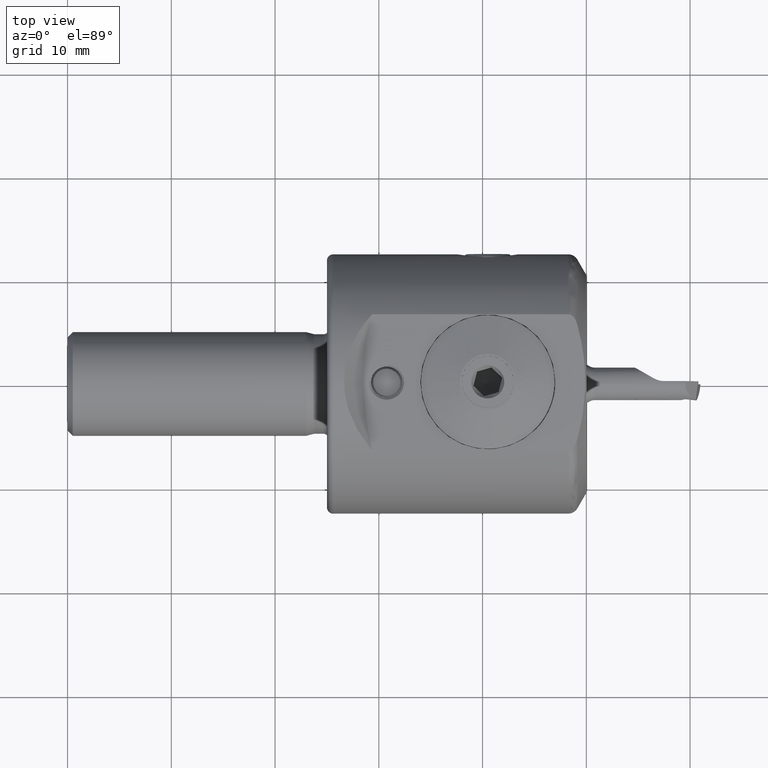
[diagram: clean part render]
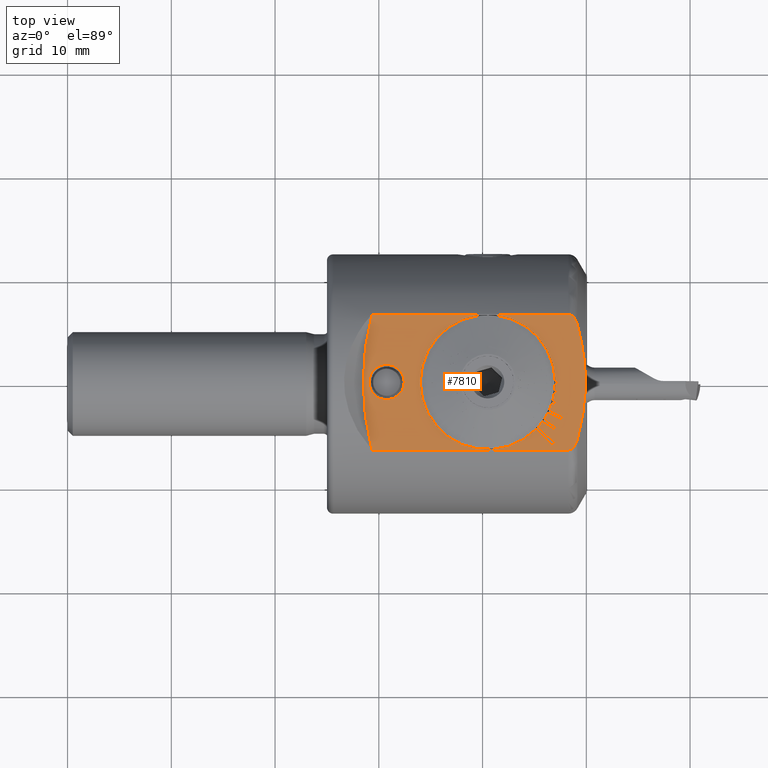
[diagram: same view with one face highlighted and labeled with its STEP entity id]
A machine part, top view. The second image highlights one B-rep face of the part: STEP entity #7810.
In plain terms, the highlighted planar face has unit normal (0, 0, 1).
Its self-contained STEP definition (entity closure, byte-faithful):
#161 = CIRCLE ( 'NONE', #25487, 26.00000000000000000 ) ;
#274 = CARTESIAN_POINT ( 'NONE',  ( -4.063373307742120100, -3.562736337287559300, 10.65000000000000000 ) ) ;
#407 = CARTESIAN_POINT ( 'NONE',  ( -0.4273664127864775200, -3.703570916399436400, 10.64999999999999900 ) ) ;
#452 = ORIENTED_EDGE ( 'NONE', *, *, #12678, .F. ) ;
#493 = EDGE_CURVE ( 'NONE', #11500, #12852, #5514, .T. ) ;
#1040 = CARTESIAN_POINT ( 'NONE',  ( -1.732050807571700000, -6.544272304852478700, 10.65000000000000000 ) ) ;
#1185 = DIRECTION ( 'NONE',  ( 1.000000000000000000, 0.0000000000000000000, 0.0000000000000000000 ) ) ;
#1258 = VERTEX_POINT ( 'NONE', #4352 ) ;
#1370 = AXIS2_PLACEMENT_3D ( 'NONE', #5457, #22937, #7993 ) ;
#1416 = CARTESIAN_POINT ( 'NONE',  ( -1.905639879263398600, -2.519562334328281100, 10.65000000000000000 ) ) ;
#1555 = EDGE_CURVE ( 'NONE', #31138, #13710, #3898, .T. ) ;
#1772 = DIRECTION ( 'NONE',  ( 0.8994052515663707400, -0.4371157666509335500, -1.155149275269835000E-015 ) ) ;
#1791 = VECTOR ( 'NONE', #8668, 1000.000000000000000 ) ;
#1798 = VERTEX_POINT ( 'NONE', #3910 ) ;
#1800 = VERTEX_POINT ( 'NONE', #3254 ) ;
#1807 = VERTEX_POINT ( 'NONE', #2376 ) ;
#1916 = DIRECTION ( 'NONE',  ( 1.000000000000000000, 0.0000000000000000000, 0.0000000000000000000 ) ) ;
#1922 = DIRECTION ( 'NONE',  ( -0.0000000000000000000, -0.0000000000000000000, 1.000000000000000000 ) ) ;
#1957 = EDGE_CURVE ( 'NONE', #31138, #16425, #21854, .T. ) ;
#1966 = EDGE_CURVE ( 'NONE', #1258, #23478, #28532, .T. ) ;
#2092 = VECTOR ( 'NONE', #26825, 1000.000000000000200 ) ;
#2209 = CARTESIAN_POINT ( 'NONE',  ( -1.494976211891614800, 6.500633488989178600, 10.65000000000000000 ) ) ;
#2241 = ORIENTED_EDGE ( 'NONE', *, *, #25653, .F. ) ;
#2343 = CARTESIAN_POINT ( 'NONE',  ( -2.996829561341576700, -4.661681482658340600, 10.64999999998299500 ) ) ;
#2367 = LINE ( 'NONE', #13062, #9082 ) ;
#2376 = CARTESIAN_POINT ( 'NONE',  ( -20.66291914703061400, -6.544272304847956100, 10.65000000000000200 ) ) ;
#2489 = EDGE_CURVE ( 'NONE', #23478, #1258, #28128, .T. ) ;
#2599 = EDGE_LOOP ( 'NONE', ( #11878, #11426, #31068, #16660, #27181, #29207 ) ) ;
#2607 = CARTESIAN_POINT ( 'NONE',  ( -20.66291914703061400, 6.544272304847956100, 10.65000000000000200 ) ) ;
#2653 = CARTESIAN_POINT ( 'NONE',  ( -9.500000000000000000, 0.0000000000000000000, 10.65000000000000000 ) ) ;
#2673 = EDGE_CURVE ( 'NONE', #12225, #28989, #11708, .T. ) ;
#2721 = VECTOR ( 'NONE', #7045, 1000.000000000000100 ) ;
#2819 = CARTESIAN_POINT ( 'NONE',  ( -0.8660254037844437000, 5.529692577350034300, 10.65000000000000000 ) ) ;
#2926 = CARTESIAN_POINT ( 'NONE',  ( -0.8660254037842404200, -5.529692577350301600, 10.65000000000000000 ) ) ;
#3001 = EDGE_CURVE ( 'NONE', #1798, #1807, #12870, .T. ) ;
#3028 = DIRECTION ( 'NONE',  ( 0.9886517447379135100, -0.1502255891207596700, -1.155149275269835400E-015 ) ) ;
#3254 = CARTESIAN_POINT ( 'NONE',  ( -3.098008853464976100, -1.124504050542915400, 10.64999999998299400 ) ) ;
#3359 = VERTEX_POINT ( 'NONE', #8485 ) ;
#3367 = DIRECTION ( 'NONE',  ( 0.7289686274214090000, -0.6845471059286913900, -7.878907442359713800E-016 ) ) ;
#3389 = LINE ( 'NONE', #18387, #4180 ) ;
#3513 = LINE ( 'NONE', #17002, #2721 ) ;
#3626 = VECTOR ( 'NONE', #9592, 1000.000000000000200 ) ;
#3660 = VECTOR ( 'NONE', #22368, 1000.000000000000000 ) ;
#3898 = LINE ( 'NONE', #19598, #10587 ) ;
#3910 = CARTESIAN_POINT ( 'NONE',  ( -1.732050807571700000, -6.544272304852478700, 10.65000000000000000 ) ) ;
#4090 = DIRECTION ( 'NONE',  ( 0.2970415815770525700, 0.9548645447466375100, 0.0000000000000000000 ) ) ;
#4131 = VERTEX_POINT ( 'NONE', #28939 ) ;
#4135 = AXIS2_PLACEMENT_3D ( 'NONE', #19632, #4662, #22130 ) ;
#4180 = VECTOR ( 'NONE', #3367, 1000.000000000000000 ) ;
#4347 = CIRCLE ( 'NONE', #28682, 6.500000000000001800 ) ;
#4352 = CARTESIAN_POINT ( 'NONE',  ( -20.94999999999999900, 2.081899558550505000E-016, 10.64999999999999300 ) ) ;
#4452 = EDGE_CURVE ( 'NONE', #11500, #26470, #3389, .T. ) ;
#4545 = CARTESIAN_POINT ( 'NONE',  ( -4.865647832140092000, -4.557716531801025500, 10.64999999998299700 ) ) ;
#4564 = EDGE_CURVE ( 'NONE', #10354, #13985, #8522, .T. ) ;
#4662 = DIRECTION ( 'NONE',  ( 0.0000000000000000000, 0.0000000000000000000, -1.000000000000000000 ) ) ;
#4775 = CARTESIAN_POINT ( 'NONE',  ( -1.216727424223813500, 6.275384479225790500, 10.65000000000000000 ) ) ;
#5006 = ORIENTED_EDGE ( 'NONE', *, *, #22081, .F. ) ;
#5037 = VECTOR ( 'NONE', #23191, 1000.000000000000100 ) ;
#5114 = ORIENTED_EDGE ( 'NONE', *, *, #2489, .T. ) ;
#5187 = DIRECTION ( 'NONE',  ( 1.000000000000000000, 0.0000000000000000000, 0.0000000000000000000 ) ) ;
#5249 = EDGE_CURVE ( 'NONE', #8414, #28441, #17477, .T. ) ;
#5365 = LINE ( 'NONE', #18390, #31157 ) ;
#5401 = LINE ( 'NONE', #19067, #12858 ) ;
#5415 = VECTOR ( 'NONE', #17884, 1000.000000000000000 ) ;
#5457 = CARTESIAN_POINT ( 'NONE',  ( -9.500000000000000000, 0.0000000000000000000, 10.65000000000000000 ) ) ;
#5514 = CIRCLE ( 'NONE', #14099, 6.500000000000001800 ) ;
#5597 = FACE_BOUND ( 'NONE', #29061, .T. ) ;
#5833 = DIRECTION ( 'NONE',  ( -0.8235325976284257900, 0.5672689491267588500, 0.0000000000000000000 ) ) ;
#5918 = DIRECTION ( 'NONE',  ( -1.000000000000000000, 1.772754174530942800E-015, 1.575781488471949100E-015 ) ) ;
#6005 = CARTESIAN_POINT ( 'NONE',  ( -9.500000000000000000, 0.0000000000000000000, 10.65000000000000000 ) ) ;
#6161 = VERTEX_POINT ( 'NONE', #7443 ) ;
#6242 = ORIENTED_EDGE ( 'NONE', *, *, #7495, .F. ) ;
#6352 = ORIENTED_EDGE ( 'NONE', *, *, #1555, .F. ) ;
#6412 = CARTESIAN_POINT ( 'NONE',  ( -3.260655007323032300, -6.064905115692841500, 10.65000000000000000 ) ) ;
#6617 = EDGE_CURVE ( 'NONE', #6161, #19150, #24396, .T. ) ;
#6729 = CARTESIAN_POINT ( 'NONE',  ( -2.239190622471396000, -3.362015345472549200, 10.64999999998299400 ) ) ;
#7045 = DIRECTION ( 'NONE',  ( 0.6845471059286947200, 0.7289686274214057800, 0.0000000000000000000 ) ) ;
#7289 = CARTESIAN_POINT ( 'NONE',  ( -0.9266429168603677000, 5.757537314121174500, 10.64999999999999900 ) ) ;
#7443 = CARTESIAN_POINT ( 'NONE',  ( -2.996829561341576300, -4.661681482658339700, 10.65000000000000000 ) ) ;
#7495 = EDGE_CURVE ( 'NONE', #28989, #16425, #16965, .T. ) ;
#7497 = DIRECTION ( 'NONE',  ( -1.000000000000000000, 0.0000000000000000000, 0.0000000000000000000 ) ) ;
#7602 = AXIS2_PLACEMENT_3D ( 'NONE', #26690, #26591, #26476 ) ;
#7775 = ORIENTED_EDGE ( 'NONE', *, *, #4452, .F. ) ;
#7791 = LINE ( 'NONE', #14978, #20301 ) ;
#7810 = ADVANCED_FACE ( 'NONE', ( #5597, #13052, #31385 ), #8695, .T. ) ;
#7876 = CARTESIAN_POINT ( 'NONE',  ( -0.4313324834103293100, 3.724889982567108700, 10.65000000000000000 ) ) ;
#7963 = EDGE_CURVE ( 'NONE', #11821, #28441, #29048, .T. ) ;
#7987 = EDGE_CURVE ( 'NONE', #1800, #12225, #28274, .T. ) ;
#7993 = DIRECTION ( 'NONE',  ( 1.000000000000000000, 0.0000000000000000000, 0.0000000000000000000 ) ) ;
#8041 = ORIENTED_EDGE ( 'NONE', *, *, #8382, .T. ) ;
#8168 = DIRECTION ( 'NONE',  ( -1.459718204505441300E-016, -0.0000000000000000000, -1.000000000000000000 ) ) ;
#8306 = CIRCLE ( 'NONE', #28889, 6.500000000000001800 ) ;
#8382 = EDGE_CURVE ( 'NONE', #9609, #14868, #8737, .T. ) ;
#8385 = VERTEX_POINT ( 'NONE', #22025 ) ;
#8387 = CARTESIAN_POINT ( 'NONE',  ( -19.24999999999999600, 0.0000000000000000000, 10.64999999999999300 ) ) ;
#8414 = VERTEX_POINT ( 'NONE', #25317 ) ;
#8485 = CARTESIAN_POINT ( 'NONE',  ( -3.055290875544431000, -5.846214527466427700, 10.65000000000000000 ) ) ;
#8522 = LINE ( 'NONE', #13700, #1791 ) ;
#8538 = DIRECTION ( 'NONE',  ( 1.000000000000000000, 0.0000000000000000000, 0.0000000000000000000 ) ) ;
#8668 = DIRECTION ( 'NONE',  ( 1.000000000000000000, -1.186607980821748300E-032, -0.0000000000000000000 ) ) ;
#8695 = PLANE ( 'NONE',  #27160 ) ;
#8737 = CIRCLE ( 'NONE', #4135, 6.500000000000001800 ) ;
#8820 = LINE ( 'NONE', #19295, #2092 ) ;
#9068 = CARTESIAN_POINT ( 'NONE',  ( -0.8660254037842404200, -5.529692577350301600, 10.65000000000000000 ) ) ;
#9082 = VECTOR ( 'NONE', #30498, 1000.000000000000000 ) ;
#9332 = DIRECTION ( 'NONE',  ( 1.000000000000000000, 0.0000000000000000000, 0.0000000000000000000 ) ) ;
#9552 = DIRECTION ( 'NONE',  ( 0.0000000000000000000, 0.0000000000000000000, -1.000000000000000000 ) ) ;
#9584 = CARTESIAN_POINT ( 'NONE',  ( -9.500000000000000000, 0.0000000000000000000, 10.65000000000000000 ) ) ;
#9592 = DIRECTION ( 'NONE',  ( -0.9886517447379137300, 0.1502255891207582800, 1.155149275269824700E-015 ) ) ;
#9609 = VERTEX_POINT ( 'NONE', #17237 ) ;
#9705 = CARTESIAN_POINT ( 'NONE',  ( -1.613081139254036700, 6.544272304849053900, 10.65000000000000000 ) ) ;
#9726 = EDGE_CURVE ( 'NONE', #12852, #8385, #27409, .T. ) ;
#9824 = DIRECTION ( 'NONE',  ( -0.7289686274214097800, 0.6845471059286905000, 7.878907442359722700E-016 ) ) ;
#10090 = VERTEX_POINT ( 'NONE', #1416 ) ;
#10138 = CARTESIAN_POINT ( 'NONE',  ( -3.720990100054861300, -2.975406623696370500, 10.64999999998299500 ) ) ;
#10354 = VERTEX_POINT ( 'NONE', #2607 ) ;
#10417 = CARTESIAN_POINT ( 'NONE',  ( -0.1747945969716532000, 1.868828157054754000, 10.65000000000000000 ) ) ;
#10587 = VECTOR ( 'NONE', #21487, 1000.000000000000000 ) ;
#10779 = ORIENTED_EDGE ( 'NONE', *, *, #11132, .T. ) ;
#10934 = CARTESIAN_POINT ( 'NONE',  ( -0.9268816546892323400, -5.758434664655880800, 10.64999999999999700 ) ) ;
#11045 = CARTESIAN_POINT ( 'NONE',  ( -1.013037529046951100, -5.984356402960452600, 10.64999999999999900 ) ) ;
#11132 = EDGE_CURVE ( 'NONE', #1800, #4131, #8306, .T. ) ;
#11147 = EDGE_CURVE ( 'NONE', #28377, #1798, #11350, .T. ) ;
#11329 = CARTESIAN_POINT ( 'NONE',  ( -3.001730999719981700, -0.1499999999999830400, 10.64999999998299500 ) ) ;
#11350 = B_SPLINE_CURVE_WITH_KNOTS ( 'NONE', 3,
 ( #28397, #10934, #11045, #28503, #13567, #31002, #16075, #1040 ),
 .UNSPECIFIED., .F., .F.,
 ( 4, 2, 2, 4 ),
 ( 0.005563745697690235600, 0.006273445233158292000, 0.006628295000892319400, 0.006983144768626347600 ),
 .UNSPECIFIED. ) ;
#11426 = ORIENTED_EDGE ( 'NONE', *, *, #21233, .F. ) ;
#11500 = VERTEX_POINT ( 'NONE', #4545 ) ;
#11515 = CARTESIAN_POINT ( 'NONE',  ( -0.7999999999999951600, -0.1499999999999869500, 10.64999999998299200 ) ) ;
#11708 = LINE ( 'NONE', #23525, #5037 ) ;
#11739 = EDGE_CURVE ( 'NONE', #11821, #10090, #27018, .T. ) ;
#11821 = VERTEX_POINT ( 'NONE', #13525 ) ;
#11878 = ORIENTED_EDGE ( 'NONE', *, *, #11147, .F. ) ;
#12102 = VECTOR ( 'NONE', #28979, 1000.000000000000000 ) ;
#12161 = CARTESIAN_POINT ( 'NONE',  ( -16.00000000000000000, 7.960204194457799400E-016, 10.65000000000000000 ) ) ;
#12177 = VECTOR ( 'NONE', #28263, 1000.000000000000100 ) ;
#12225 = VERTEX_POINT ( 'NONE', #14609 ) ;
#12678 = EDGE_CURVE ( 'NONE', #13710, #29473, #32010, .T. ) ;
#12852 = VERTEX_POINT ( 'NONE', #12161 ) ;
#12858 = VECTOR ( 'NONE', #4090, 999.9999999999998900 ) ;
#12870 = LINE ( 'NONE', #17999, #5415 ) ;
#12916 = CARTESIAN_POINT ( 'NONE',  ( -0.08658808963688283100, 0.4652501652095394900, 10.65000000000000200 ) ) ;
#13052 = FACE_OUTER_BOUND ( 'NONE', #2599, .T. ) ;
#13062 = CARTESIAN_POINT ( 'NONE',  ( -2.370325352466673400, -3.631836920942453700, 10.64999999998299400 ) ) ;
#13196 = CARTESIAN_POINT ( 'NONE',  ( -1.732050807568880500, 6.544272304847957900, 10.65000000000000200 ) ) ;
#13525 = CARTESIAN_POINT ( 'NONE',  ( -3.339589566642954500, -2.073485783068183900, 10.64999999998299500 ) ) ;
#13567 = CARTESIAN_POINT ( 'NONE',  ( -1.298760411601244100, -6.365820453527287100, 10.65000000000000000 ) ) ;
#13700 = CARTESIAN_POINT ( 'NONE',  ( 13.00000000000000200, 6.544272304847956100, 10.65000000000000000 ) ) ;
#13707 = CARTESIAN_POINT ( 'NONE',  ( -9.500000000000000000, 0.0000000000000000000, 10.65000000000000000 ) ) ;
#13710 = VERTEX_POINT ( 'NONE', #14727 ) ;
#13985 = VERTEX_POINT ( 'NONE', #13196 ) ;
#14044 = AXIS2_PLACEMENT_3D ( 'NONE', #2653, #20157, #5187 ) ;
#14099 = AXIS2_PLACEMENT_3D ( 'NONE', #13707, #18711, #18911 ) ;
#14385 = VERTEX_POINT ( 'NONE', #15127 ) ;
#14570 = CARTESIAN_POINT ( 'NONE',  ( -4.660283700361503600, -4.339025943574604600, 10.65000000000000000 ) ) ;
#14609 = CARTESIAN_POINT ( 'NONE',  ( -1.613319880464787200, -1.350102474676761600, 10.65000000000000000 ) ) ;
#14727 = CARTESIAN_POINT ( 'NONE',  ( -0.7999999999999951600, -0.1499999999999869500, 10.65000000000000000 ) ) ;
#14868 = VERTEX_POINT ( 'NONE', #14570 ) ;
#14978 = CARTESIAN_POINT ( 'NONE',  ( -1.816527404790282900, -2.233102970904290000, 10.64999999998299400 ) ) ;
#14979 = VECTOR ( 'NONE', #3028, 1000.000000000000100 ) ;
#15127 = CARTESIAN_POINT ( 'NONE',  ( -2.370325352466673000, -3.631836920942453700, 10.65000000000000000 ) ) ;
#15243 = CARTESIAN_POINT ( 'NONE',  ( -17.54999999999999400, 0.0000000000000000000, 10.64999999999999300 ) ) ;
#15435 = CARTESIAN_POINT ( 'NONE',  ( -0.1582629119096671500, -1.858906445210494900, 10.65000000000000000 ) ) ;
#15747 = ORIENTED_EDGE ( 'NONE', *, *, #29696, .F. ) ;
#15902 = CARTESIAN_POINT ( 'NONE',  ( -2.826648876603554700, -4.414621703369815200, 10.64999999998299500 ) ) ;
#16075 = CARTESIAN_POINT ( 'NONE',  ( -1.613332166985270900, -6.544272304849791100, 10.65000000000000000 ) ) ;
#16225 = DIRECTION ( 'NONE',  ( 0.0000000000000000000, -0.0000000000000000000, 1.000000000000000000 ) ) ;
#16425 = VERTEX_POINT ( 'NONE', #25162 ) ;
#16660 = ORIENTED_EDGE ( 'NONE', *, *, #4564, .F. ) ;
#16769 = ORIENTED_EDGE ( 'NONE', *, *, #7963, .T. ) ;
#16923 = ORIENTED_EDGE ( 'NONE', *, *, #1966, .T. ) ;
#16962 = DIRECTION ( 'NONE',  ( 0.0000000000000000000, 0.0000000000000000000, -1.000000000000000000 ) ) ;
#16965 = LINE ( 'NONE', #27065, #3626 ) ;
#16968 = CARTESIAN_POINT ( 'NONE',  ( 4.500000000000000900, 0.0000000000000000000, 10.65000000000000200 ) ) ;
#17002 = CARTESIAN_POINT ( 'NONE',  ( -3.260655007323032300, -6.064905115692842400, 10.64999999998299500 ) ) ;
#17237 = CARTESIAN_POINT ( 'NONE',  ( -4.233553992480136900, -3.809796116576102100, 10.64999999998299500 ) ) ;
#17253 = CARTESIAN_POINT ( 'NONE',  ( -3.055290875544431000, -5.846214527466427700, 10.64999999998299500 ) ) ;
#17375 = LINE ( 'NONE', #15902, #23226 ) ;
#17477 = LINE ( 'NONE', #6729, #24890 ) ;
#17841 = CARTESIAN_POINT ( 'NONE',  ( -0.6275034978080783500, 4.633153637963544300, 10.65000000000000000 ) ) ;
#17884 = DIRECTION ( 'NONE',  ( -1.000000000000000000, 1.186607980821748300E-032, 0.0000000000000000000 ) ) ;
#17949 = CARTESIAN_POINT ( 'NONE',  ( -0.6255965174775632900, -4.625985817817602100, 10.65000000000000200 ) ) ;
#17999 = CARTESIAN_POINT ( 'NONE',  ( 13.00000000000000200, -6.544272304847956100, 10.65000000000000000 ) ) ;
#18037 = EDGE_CURVE ( 'NONE', #10354, #1807, #161, .T. ) ;
#18355 = LINE ( 'NONE', #24332, #24969 ) ;
#18387 = CARTESIAN_POINT ( 'NONE',  ( -4.865647832140093800, -4.557716531801025500, 10.64999999998299700 ) ) ;
#18390 = CARTESIAN_POINT ( 'NONE',  ( -0.7999999999999951600, 0.1500000000000129600, 10.64999999998299200 ) ) ;
#18711 = DIRECTION ( 'NONE',  ( 0.0000000000000000000, 0.0000000000000000000, -1.000000000000000000 ) ) ;
#18720 = VERTEX_POINT ( 'NONE', #28146 ) ;
#18911 = DIRECTION ( 'NONE',  ( 1.000000000000000000, 0.0000000000000000000, 0.0000000000000000000 ) ) ;
#19067 = CARTESIAN_POINT ( 'NONE',  ( -1.905639879263398800, -2.519562334328281600, 10.64999999998299400 ) ) ;
#19150 = VERTEX_POINT ( 'NONE', #26916 ) ;
#19295 = CARTESIAN_POINT ( 'NONE',  ( -4.233553992480140400, -3.809796116576102100, 10.64999999998299500 ) ) ;
#19369 = ORIENTED_EDGE ( 'NONE', *, *, #7987, .F. ) ;
#19462 = DIRECTION ( 'NONE',  ( 1.000000000000000000, 0.0000000000000000000, 0.0000000000000000000 ) ) ;
#19598 = CARTESIAN_POINT ( 'NONE',  ( -3.001730999719981700, -0.1499999999999830400, 10.64999999998299500 ) ) ;
#19632 = CARTESIAN_POINT ( 'NONE',  ( -9.500000000000000000, 0.0000000000000000000, 10.65000000000000000 ) ) ;
#19729 = ORIENTED_EDGE ( 'NONE', *, *, #2673, .F. ) ;
#19737 = CARTESIAN_POINT ( 'NONE',  ( -1.298453941159414000, 6.365340222800146100, 10.65000000000000000 ) ) ;
#20099 = CARTESIAN_POINT ( 'NONE',  ( -1.816527404790282900, -2.233102970904290900, 10.65000000000000000 ) ) ;
#20150 = ORIENTED_EDGE ( 'NONE', *, *, #23908, .F. ) ;
#20157 = DIRECTION ( 'NONE',  ( 0.0000000000000000000, 0.0000000000000000000, -1.000000000000000000 ) ) ;
#20210 = CARTESIAN_POINT ( 'NONE',  ( -0.7999999999999951600, 0.1500000000000129600, 10.65000000000000000 ) ) ;
#20291 = ORIENTED_EDGE ( 'NONE', *, *, #24882, .F. ) ;
#20301 = VECTOR ( 'NONE', #29905, 1000.000000000000100 ) ;
#20373 = VECTOR ( 'NONE', #9824, 1000.000000000000000 ) ;
#21059 = ORIENTED_EDGE ( 'NONE', *, *, #493, .T. ) ;
#21068 = EDGE_LOOP ( 'NONE', ( #30835, #7775, #21059, #22637, #2241, #452, #6352, #25504, #6242, #19729, #19369, #10779, #20150, #20291, #29635, #16769, #25393, #5006, #22409, #26664, #15747, #25436, #22450, #8041, #23488 ) ) ;
#21233 = EDGE_CURVE ( 'NONE', #18720, #28377, #23440, .T. ) ;
#21487 = DIRECTION ( 'NONE',  ( 1.000000000000000000, -1.772754174530953900E-015, -1.575781488471958900E-015 ) ) ;
#21854 = CIRCLE ( 'NONE', #32273, 6.500000000000001800 ) ;
#21895 = B_SPLINE_CURVE_WITH_KNOTS ( 'NONE', 3,
 ( #27172, #9705, #2209, #19737, #4775, #22244, #7289, #24759 ),
 .UNSPECIFIED., .F., .F.,
 ( 4, 2, 2, 4 ),
 ( 0.02100357758013055700, 0.02135751219815848500, 0.02171144681618641600, 0.02241931605224227500 ),
 .UNSPECIFIED. ) ;
#22025 = CARTESIAN_POINT ( 'NONE',  ( -3.001730999720001200, 0.1500000000000177600, 10.65000000000000000 ) ) ;
#22081 = EDGE_CURVE ( 'NONE', #14385, #8414, #2367, .T. ) ;
#22130 = DIRECTION ( 'NONE',  ( 1.000000000000000000, 8.881784197001252300E-016, 0.0000000000000000000 ) ) ;
#22244 = CARTESIAN_POINT ( 'NONE',  ( -1.013010779127728500, 5.983896327239756700, 10.65000000000000000 ) ) ;
#22368 = DIRECTION ( 'NONE',  ( 0.5672689491267504100, 0.8235325976284316700, 0.0000000000000000000 ) ) ;
#22374 = EDGE_CURVE ( 'NONE', #30802, #24005, #4347, .T. ) ;
#22409 = ORIENTED_EDGE ( 'NONE', *, *, #24453, .F. ) ;
#22450 = ORIENTED_EDGE ( 'NONE', *, *, #28638, .F. ) ;
#22587 = EDGE_CURVE ( 'NONE', #3359, #14868, #27023, .T. ) ;
#22637 = ORIENTED_EDGE ( 'NONE', *, *, #9726, .T. ) ;
#22937 = DIRECTION ( 'NONE',  ( 0.0000000000000000000, 0.0000000000000000000, -1.000000000000000000 ) ) ;
#23191 = DIRECTION ( 'NONE',  ( 0.1502255891208206200, 0.9886517447379042900, 0.0000000000000000000 ) ) ;
#23226 = VECTOR ( 'NONE', #5833, 1000.000000000000100 ) ;
#23275 = EDGE_CURVE ( 'NONE', #26470, #3359, #3513, .T. ) ;
#23440 = B_SPLINE_CURVE_WITH_KNOTS ( 'NONE', 3,
 ( #2819, #17841, #7876, #25371, #10417, #27883, #12916, #30351, #15435, #407, #17949, #2926 ),
 .UNSPECIFIED., .F., .F.,
 ( 4, 2, 2, 2, 2, 4 ),
 ( 0.005354181706005563400, 0.008137217689378060300, 0.009528735681064307400, 0.01092025367275055400, 0.01370328965612305200, 0.01648632563949554600 ),
 .UNSPECIFIED. ) ;
#23478 = VERTEX_POINT ( 'NONE', #15243 ) ;
#23488 = ORIENTED_EDGE ( 'NONE', *, *, #22587, .F. ) ;
#23493 = DIRECTION ( 'NONE',  ( 0.0000000000000000000, 0.0000000000000000000, -1.000000000000000000 ) ) ;
#23525 = CARTESIAN_POINT ( 'NONE',  ( -1.613319880464786400, -1.350102474676761100, 10.64999999998299400 ) ) ;
#23908 = EDGE_CURVE ( 'NONE', #23947, #4131, #7791, .T. ) ;
#23947 = VERTEX_POINT ( 'NONE', #20099 ) ;
#23989 = DIRECTION ( 'NONE',  ( -0.8994052515663700800, 0.4371157666509349900, 1.155149275269834200E-015 ) ) ;
#24005 = VERTEX_POINT ( 'NONE', #274 ) ;
#24332 = CARTESIAN_POINT ( 'NONE',  ( -3.720990100054860900, -2.975406623696371400, 10.64999999998299500 ) ) ;
#24396 = LINE ( 'NONE', #2343, #3660 ) ;
#24453 = EDGE_CURVE ( 'NONE', #30802, #14385, #18355, .T. ) ;
#24759 = CARTESIAN_POINT ( 'NONE',  ( -0.8660254037844437000, 5.529692577350034300, 10.65000000000000000 ) ) ;
#24882 = EDGE_CURVE ( 'NONE', #10090, #23947, #5401, .T. ) ;
#24890 = VECTOR ( 'NONE', #23989, 999.9999999999998900 ) ;
#24969 = VECTOR ( 'NONE', #1772, 1000.000000000000100 ) ;
#25162 = CARTESIAN_POINT ( 'NONE',  ( -3.052941176728766900, -0.8279085271215420600, 10.65000000000000000 ) ) ;
#25317 = CARTESIAN_POINT ( 'NONE',  ( -2.239190622471395600, -3.362015345472550100, 10.65000000000000000 ) ) ;
#25371 = CARTESIAN_POINT ( 'NONE',  ( -0.2276540408383296300, 2.337418232746913700, 10.64999999999999900 ) ) ;
#25393 = ORIENTED_EDGE ( 'NONE', *, *, #5249, .F. ) ;
#25436 = ORIENTED_EDGE ( 'NONE', *, *, #6617, .F. ) ;
#25487 = AXIS2_PLACEMENT_3D ( 'NONE', #16968, #1922, #19462 ) ;
#25504 = ORIENTED_EDGE ( 'NONE', *, *, #1957, .T. ) ;
#25653 = EDGE_CURVE ( 'NONE', #29473, #8385, #5365, .T. ) ;
#26470 = VERTEX_POINT ( 'NONE', #6412 ) ;
#26476 = DIRECTION ( 'NONE',  ( -1.000000000000000000, 0.0000000000000000000, 0.0000000000000000000 ) ) ;
#26591 = DIRECTION ( 'NONE',  ( -1.459718204505441300E-016, -0.0000000000000000000, -1.000000000000000000 ) ) ;
#26664 = ORIENTED_EDGE ( 'NONE', *, *, #22374, .T. ) ;
#26690 = CARTESIAN_POINT ( 'NONE',  ( -19.24999999999999600, 0.0000000000000000000, 10.64999999999999300 ) ) ;
#26825 = DIRECTION ( 'NONE',  ( 0.8235325976284309000, -0.5672689491267514100, 0.0000000000000000000 ) ) ;
#26916 = CARTESIAN_POINT ( 'NONE',  ( -2.826648876603554700, -4.414621703369813400, 10.65000000000000000 ) ) ;
#27018 = LINE ( 'NONE', #30532, #12177 ) ;
#27023 = LINE ( 'NONE', #17253, #20373 ) ;
#27065 = CARTESIAN_POINT ( 'NONE',  ( -1.568252203728540000, -1.053506951255389600, 10.64999999998299400 ) ) ;
#27160 = AXIS2_PLACEMENT_3D ( 'NONE', #31146, #16225, #1185 ) ;
#27172 = CARTESIAN_POINT ( 'NONE',  ( -1.732050807568880500, 6.544272304847957900, 10.65000000000000200 ) ) ;
#27181 = ORIENTED_EDGE ( 'NONE', *, *, #18037, .T. ) ;
#27409 = CIRCLE ( 'NONE', #14044, 6.500000000000001800 ) ;
#27883 = CARTESIAN_POINT ( 'NONE',  ( -0.1042944013629889700, 0.9322997684132826600, 10.64999999999999900 ) ) ;
#27921 = CARTESIAN_POINT ( 'NONE',  ( -1.568252203728540000, -1.053506951255389600, 10.65000000000000000 ) ) ;
#27976 = CARTESIAN_POINT ( 'NONE',  ( -3.098008853464978800, -1.124504050542916200, 10.64999999998299500 ) ) ;
#28128 = CIRCLE ( 'NONE', #7602, 1.700000000000003500 ) ;
#28146 = CARTESIAN_POINT ( 'NONE',  ( -0.8660254037844437000, 5.529692577350034300, 10.65000000000000000 ) ) ;
#28263 = DIRECTION ( 'NONE',  ( 0.9548645447466416200, -0.2970415815770389700, -1.155149275269835400E-015 ) ) ;
#28274 = LINE ( 'NONE', #27976, #14979 ) ;
#28377 = VERTEX_POINT ( 'NONE', #9068 ) ;
#28397 = CARTESIAN_POINT ( 'NONE',  ( -0.8660254037842404200, -5.529692577350301600, 10.65000000000000000 ) ) ;
#28441 = VERTEX_POINT ( 'NONE', #28711 ) ;
#28503 = CARTESIAN_POINT ( 'NONE',  ( -1.217886951363410100, -6.276830872186926600, 10.65000000000000200 ) ) ;
#28532 = CIRCLE ( 'NONE', #28954, 1.700000000000003500 ) ;
#28638 = EDGE_CURVE ( 'NONE', #9609, #6161, #8820, .T. ) ;
#28682 = AXIS2_PLACEMENT_3D ( 'NONE', #31888, #16962, #1916 ) ;
#28711 = CARTESIAN_POINT ( 'NONE',  ( -3.589855370059591900, -2.705585048226460700, 10.65000000000000000 ) ) ;
#28889 = AXIS2_PLACEMENT_3D ( 'NONE', #6005, #23493, #8538 ) ;
#28939 = CARTESIAN_POINT ( 'NONE',  ( -3.250477092169861100, -1.787026419644193200, 10.65000000000000000 ) ) ;
#28954 = AXIS2_PLACEMENT_3D ( 'NONE', #8387, #8168, #7497 ) ;
#28979 = DIRECTION ( 'NONE',  ( 0.0000000000000000000, 1.000000000000000000, 0.0000000000000000000 ) ) ;
#28989 = VERTEX_POINT ( 'NONE', #27921 ) ;
#29048 = CIRCLE ( 'NONE', #1370, 6.500000000000001800 ) ;
#29061 = EDGE_LOOP ( 'NONE', ( #5114, #16923 ) ) ;
#29207 = ORIENTED_EDGE ( 'NONE', *, *, #3001, .F. ) ;
#29473 = VERTEX_POINT ( 'NONE', #20210 ) ;
#29635 = ORIENTED_EDGE ( 'NONE', *, *, #11739, .F. ) ;
#29696 = EDGE_CURVE ( 'NONE', #19150, #24005, #17375, .T. ) ;
#29905 = DIRECTION ( 'NONE',  ( -0.9548645447466428400, 0.2970415815770352500, 1.155149275269836800E-015 ) ) ;
#30351 = CARTESIAN_POINT ( 'NONE',  ( -0.08663146852243654200, -0.9322181119252576100, 10.64999999999999900 ) ) ;
#30498 = DIRECTION ( 'NONE',  ( 0.4371157666509357700, 0.8994052515663696300, 0.0000000000000000000 ) ) ;
#30532 = CARTESIAN_POINT ( 'NONE',  ( -3.339589566642958500, -2.073485783068183900, 10.64999999998299500 ) ) ;
#30713 = EDGE_CURVE ( 'NONE', #13985, #18720, #21895, .T. ) ;
#30802 = VERTEX_POINT ( 'NONE', #10138 ) ;
#30835 = ORIENTED_EDGE ( 'NONE', *, *, #23275, .F. ) ;
#31002 = CARTESIAN_POINT ( 'NONE',  ( -1.496980349441074900, -6.501740809291533200, 10.65000000000000000 ) ) ;
#31068 = ORIENTED_EDGE ( 'NONE', *, *, #30713, .F. ) ;
#31138 = VERTEX_POINT ( 'NONE', #11329 ) ;
#31146 = CARTESIAN_POINT ( 'NONE',  ( 4.500000000000000900, 0.0000000000000000000, 10.65000000000000000 ) ) ;
#31157 = VECTOR ( 'NONE', #5918, 1000.000000000000000 ) ;
#31385 = FACE_BOUND ( 'NONE', #21068, .T. ) ;
#31888 = CARTESIAN_POINT ( 'NONE',  ( -9.500000000000000000, 0.0000000000000000000, 10.65000000000000000 ) ) ;
#32010 = LINE ( 'NONE', #11515, #12102 ) ;
#32273 = AXIS2_PLACEMENT_3D ( 'NONE', #9584, #9552, #9332 ) ;